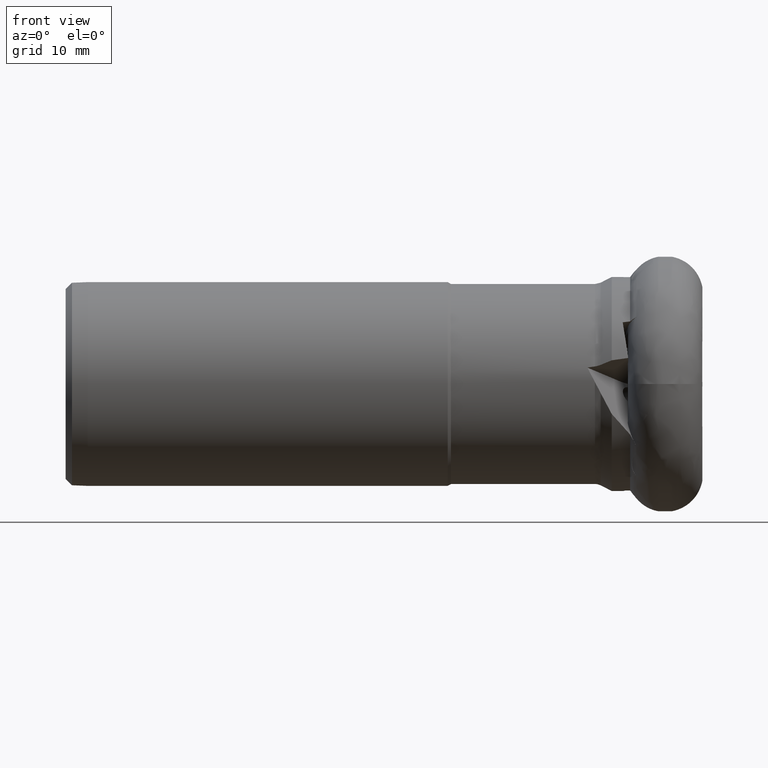
[diagram: clean part render]
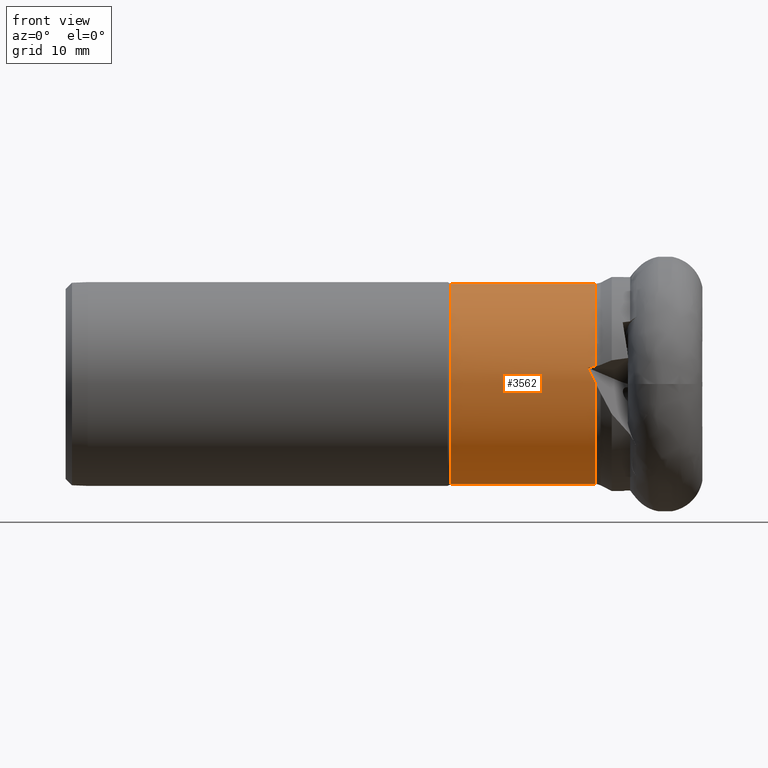
[diagram: same view with one face highlighted and labeled with its STEP entity id]
A machine part, front view. The second image highlights one B-rep face of the part: STEP entity #3562.
In plain terms, the highlighted cylindrical surface (partial cylindrical patch) has radius 15.7 mm, axis along (1, -0, -0).
Its self-contained STEP definition (entity closure, byte-faithful):
#149 = CARTESIAN_POINT ( 'NONE',  ( -16.82544663111126900, -15.48629610280839800, 2.581595052703241000 ) ) ;
#383 = CARTESIAN_POINT ( 'NONE',  ( -16.42900919228527100, -15.47651293866897000, 2.640281629642070800 ) ) ;
#457 = EDGE_CURVE ( 'NONE', #2619, #6039, #4775, .T. ) ;
#470 = AXIS2_PLACEMENT_3D ( 'NONE', #889, #5877, #1439 ) ;
#595 = CIRCLE ( 'NONE', #470, 15.69999999999999900 ) ;
#722 = DIRECTION ( 'NONE',  ( 0.0000000000000000000, 0.0000000000000000000, -1.000000000000000000 ) ) ;
#889 = CARTESIAN_POINT ( 'NONE',  ( -15.63363394381394800, 0.0000000000000000000, 0.0000000000000000000 ) ) ;
#944 =( BOUNDED_CURVE ( )  B_SPLINE_CURVE ( 3, ( #6006, #5530, #3684, #149 ),
 .UNSPECIFIED., .F., .F. ) 
 B_SPLINE_CURVE_WITH_KNOTS ( ( 4, 4 ),
 ( 2.488683765501563000, 2.634667273066977300 ),
 .UNSPECIFIED. ) 
 CURVE ( )  GEOMETRIC_REPRESENTATION_ITEM ( )  RATIONAL_B_SPLINE_CURVE ( ( 1.000000000000000000, 0.9982248563035449600, 0.9982248563035449600, 1.000000000000000000 ) ) 
 REPRESENTATION_ITEM ( '' )  );
#1363 = DIRECTION ( 'NONE',  ( 1.000000000000000000, -0.0000000000000000000, -0.0000000000000000000 ) ) ;
#1391 = CARTESIAN_POINT ( 'NONE',  ( -16.03173401764761500, -15.46639633985255800, 2.698911647907153500 ) ) ;
#1439 = DIRECTION ( 'NONE',  ( 0.0000000000000000000, 0.0000000000000000000, -1.000000000000000000 ) ) ;
#1678 = DIRECTION ( 'NONE',  ( 1.000000000000000000, -0.0000000000000000000, -0.0000000000000000000 ) ) ;
#1780 = VERTEX_POINT ( 'NONE', #4366 ) ;
#1960 = VERTEX_POINT ( 'NONE', #2294 ) ;
#2164 = CIRCLE ( 'NONE', #4369, 15.69999999999999600 ) ;
#2276 = ORIENTED_EDGE ( 'NONE', *, *, #457, .F. ) ;
#2294 = CARTESIAN_POINT ( 'NONE',  ( -38.23038475772932500, 0.0000000000000000000, -15.69999999999999600 ) ) ;
#2467 = DIRECTION ( 'NONE',  ( 0.0000000000000000000, 0.0000000000000000000, -1.000000000000000000 ) ) ;
#2505 =( BOUNDED_CURVE ( )  B_SPLINE_CURVE ( 3, ( #4840, #1391, #383, #5351 ),
 .UNSPECIFIED., .F., .F. ) 
 B_SPLINE_CURVE_WITH_KNOTS ( ( 4, 4 ),
 ( 1.917843457348223900, 1.929212139795828200 ),
 .UNSPECIFIED. ) 
 CURVE ( )  GEOMETRIC_REPRESENTATION_ITEM ( )  RATIONAL_B_SPLINE_CURVE ( ( 1.000000000000000000, 0.9999892294506184100, 0.9999892294506184100, 1.000000000000000000 ) ) 
 REPRESENTATION_ITEM ( '' )  );
#2519 = CARTESIAN_POINT ( 'NONE',  ( 0.0000000000000000000, 0.0000000000000000000, -15.69999999999999900 ) ) ;
#2591 = VECTOR ( 'NONE', #1678, 1000.000000000000000 ) ;
#2619 = VERTEX_POINT ( 'NONE', #6332 ) ;
#2627 = EDGE_CURVE ( 'NONE', #5139, #1780, #2505, .T. ) ;
#2961 = CARTESIAN_POINT ( 'NONE',  ( 0.0000000000000000000, 0.0000000000000000000, 0.0000000000000000000 ) ) ;
#2970 = EDGE_LOOP ( 'NONE', ( #2276, #3084, #4994, #5231, #4223, #5291, #6363 ) ) ;
#3048 = LINE ( 'NONE', #2519, #3440 ) ;
#3084 = ORIENTED_EDGE ( 'NONE', *, *, #6137, .T. ) ;
#3340 = EDGE_CURVE ( 'NONE', #5987, #3710, #3708, .T. ) ;
#3440 = VECTOR ( 'NONE', #4484, 1000.000000000000000 ) ;
#3442 = CARTESIAN_POINT ( 'NONE',  ( -15.63363394381394800, 1.922695474661344300E-015, 15.69999999999999900 ) ) ;
#3562 = ADVANCED_FACE ( 'NONE', ( #4206 ), #5357, .T. ) ;
#3684 = CARTESIAN_POINT ( 'NONE',  ( -16.47283593333510200, -15.61203121470685900, 1.827343850005689300 ) ) ;
#3708 = CIRCLE ( 'NONE', #5160, 15.69999999999999900 ) ;
#3710 = VERTEX_POINT ( 'NONE', #5326 ) ;
#3734 = CARTESIAN_POINT ( 'NONE',  ( -38.23038475772932500, 0.0000000000000000000, 0.0000000000000000000 ) ) ;
#3775 = DIRECTION ( 'NONE',  ( 1.000000000000000000, -0.0000000000000000000, -0.0000000000000000000 ) ) ;
#3945 = EDGE_CURVE ( 'NONE', #5987, #1780, #944, .T. ) ;
#4206 = FACE_OUTER_BOUND ( 'NONE', #2970, .T. ) ;
#4223 = ORIENTED_EDGE ( 'NONE', *, *, #3945, .T. ) ;
#4366 = CARTESIAN_POINT ( 'NONE',  ( -16.82544663111126900, -15.48629610280839800, 2.581595052703241000 ) ) ;
#4367 = DIRECTION ( 'NONE',  ( 0.0000000000000000000, 0.0000000000000000000, -1.000000000000000000 ) ) ;
#4369 = AXIS2_PLACEMENT_3D ( 'NONE', #3734, #3775, #722 ) ;
#4484 = DIRECTION ( 'NONE',  ( 1.000000000000000000, -0.0000000000000000000, -0.0000000000000000000 ) ) ;
#4775 = LINE ( 'NONE', #5627, #2591 ) ;
#4840 = CARTESIAN_POINT ( 'NONE',  ( -15.63363394381394800, -15.45594663324311700, 2.757483213065965900 ) ) ;
#4994 = ORIENTED_EDGE ( 'NONE', *, *, #5426, .T. ) ;
#5139 = VERTEX_POINT ( 'NONE', #5228 ) ;
#5160 = AXIS2_PLACEMENT_3D ( 'NONE', #6303, #1363, #4367 ) ;
#5228 = CARTESIAN_POINT ( 'NONE',  ( -15.63363394381394800, -15.45594663324311700, 2.757483213065965900 ) ) ;
#5231 = ORIENTED_EDGE ( 'NONE', *, *, #3340, .F. ) ;
#5291 = ORIENTED_EDGE ( 'NONE', *, *, #2627, .F. ) ;
#5326 = CARTESIAN_POINT ( 'NONE',  ( -15.63363394381394800, 0.0000000000000000000, -15.69999999999999900 ) ) ;
#5328 = EDGE_CURVE ( 'NONE', #6039, #5139, #595, .T. ) ;
#5351 = CARTESIAN_POINT ( 'NONE',  ( -16.82544663111126900, -15.48629610280839800, 2.581595052703241000 ) ) ;
#5357 = CYLINDRICAL_SURFACE ( 'NONE', #6170, 15.69999999999999900 ) ;
#5426 = EDGE_CURVE ( 'NONE', #1960, #3710, #3048, .T. ) ;
#5435 = DIRECTION ( 'NONE',  ( 1.000000000000000000, -0.0000000000000000000, -0.0000000000000000000 ) ) ;
#5530 = CARTESIAN_POINT ( 'NONE',  ( -16.07485857056246900, -15.68242628485573900, 1.065931524630298900 ) ) ;
#5627 = CARTESIAN_POINT ( 'NONE',  ( 0.0000000000000000000, 1.922695474661344300E-015, 15.69999999999999900 ) ) ;
#5877 = DIRECTION ( 'NONE',  ( 1.000000000000000000, -0.0000000000000000000, -0.0000000000000000000 ) ) ;
#5987 = VERTEX_POINT ( 'NONE', #6386 ) ;
#6006 = CARTESIAN_POINT ( 'NONE',  ( -15.63363394381394800, -15.69710642915992200, 0.3014129254464518700 ) ) ;
#6039 = VERTEX_POINT ( 'NONE', #3442 ) ;
#6137 = EDGE_CURVE ( 'NONE', #2619, #1960, #2164, .T. ) ;
#6170 = AXIS2_PLACEMENT_3D ( 'NONE', #2961, #5435, #2467 ) ;
#6303 = CARTESIAN_POINT ( 'NONE',  ( -15.63363394381394800, 0.0000000000000000000, 0.0000000000000000000 ) ) ;
#6332 = CARTESIAN_POINT ( 'NONE',  ( -38.23038475772932500, 1.922695474661343900E-015, 15.69999999999999600 ) ) ;
#6363 = ORIENTED_EDGE ( 'NONE', *, *, #5328, .F. ) ;
#6386 = CARTESIAN_POINT ( 'NONE',  ( -15.63363394381394800, -15.69710642915992200, 0.3014129254464518700 ) ) ;